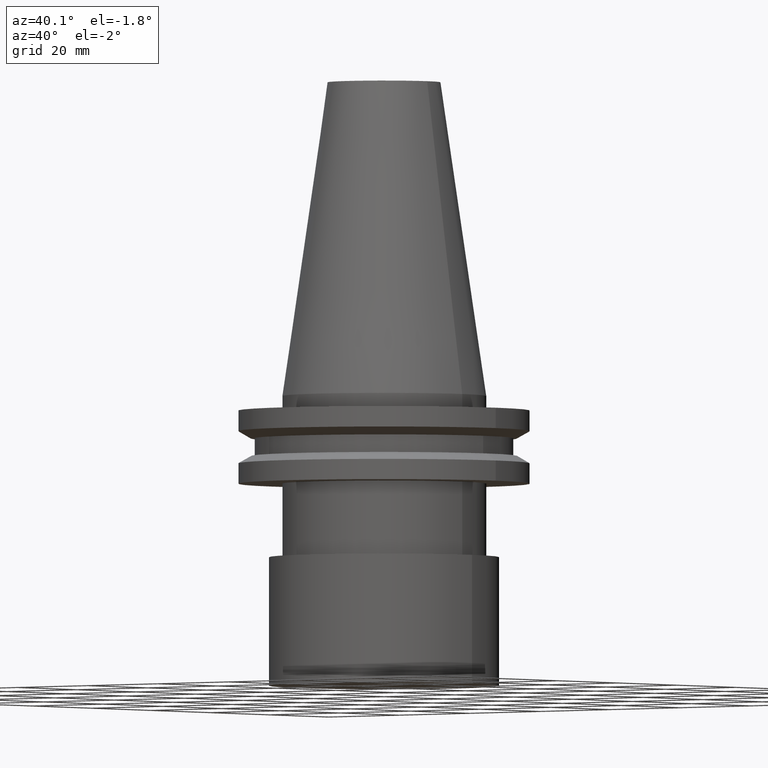
[diagram: clean part render]
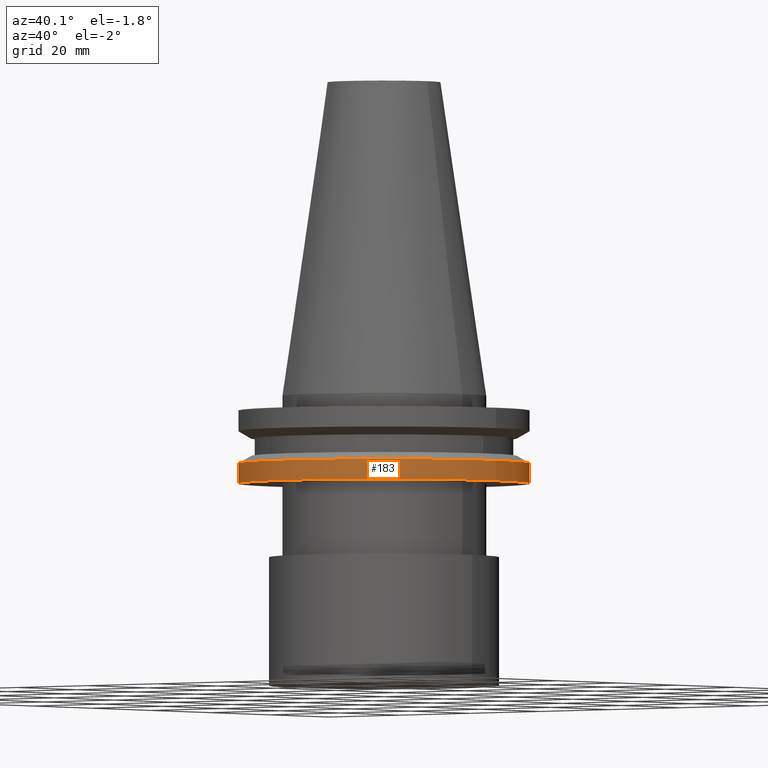
[diagram: same view with one face highlighted and labeled with its STEP entity id]
A machine part, auxiliary view. The second image highlights one B-rep face of the part: STEP entity #183.
In plain terms, the highlighted cylindrical surface (bore or boss wall) has radius 31.75 mm, axis along (-0, -0, 1).
Its self-contained STEP definition (entity closure, byte-faithful):
#17 = AXIS2_PLACEMENT_3D ( 'NONE', #366, #118, #220 ) ;
#49 = CARTESIAN_POINT ( 'NONE',  ( 0.000000000000000000, 0.000000000000000000, -19.04999999999999716 ) ) ;
#52 = DIRECTION ( 'NONE',  ( 1.000000000000000000, 0.000000000000000000, 0.000000000000000000 ) ) ;
#81 = CYLINDRICAL_SURFACE ( 'NONE', #98, 31.75000000000000000 ) ;
#98 = AXIS2_PLACEMENT_3D ( 'NONE', #202, #330, #52 ) ;
#100 = ORIENTED_EDGE ( 'NONE', *, *, #327, .F. ) ;
#101 = CARTESIAN_POINT ( 'NONE',  ( 31.75000000000000000, 0.000000000000000000, -14.65472339340266572 ) ) ;
#118 = DIRECTION ( 'NONE',  ( -0.000000000000000000, -0.000000000000000000, 1.000000000000000000 ) ) ;
#125 = CARTESIAN_POINT ( 'NONE',  ( 31.74999999999999289, 0.000000000000000000, -19.04999999999999716 ) ) ;
#170 = VERTEX_POINT ( 'NONE', #125 ) ;
#183 = ADVANCED_FACE ( 'NONE', ( #205, #296 ), #81, .T. ) ;
#202 = CARTESIAN_POINT ( 'NONE',  ( 0.000000000000000000, 0.000000000000000000, 68.25000000000000000 ) ) ;
#205 = FACE_OUTER_BOUND ( 'NONE', #283, .T. ) ;
#220 = DIRECTION ( 'NONE',  ( 1.000000000000000000, 0.000000000000000000, 0.000000000000000000 ) ) ;
#224 = EDGE_LOOP ( 'NONE', ( #383 ) ) ;
#239 = CIRCLE ( 'NONE', #285, 31.74999999999999289 ) ;
#249 = EDGE_CURVE ( 'NONE', #170, #170, #239, .T. ) ;
#283 = EDGE_LOOP ( 'NONE', ( #100 ) ) ;
#285 = AXIS2_PLACEMENT_3D ( 'NONE', #49, #392, #360 ) ;
#296 = FACE_OUTER_BOUND ( 'NONE', #224, .T. ) ;
#322 = VERTEX_POINT ( 'NONE', #101 ) ;
#324 = CIRCLE ( 'NONE', #17, 31.75000000000000000 ) ;
#327 = EDGE_CURVE ( 'NONE', #322, #322, #324, .T. ) ;
#330 = DIRECTION ( 'NONE',  ( -0.000000000000000000, -0.000000000000000000, 1.000000000000000000 ) ) ;
#360 = DIRECTION ( 'NONE',  ( 1.000000000000000000, 0.000000000000000000, 0.000000000000000000 ) ) ;
#366 = CARTESIAN_POINT ( 'NONE',  ( 0.000000000000000000, 0.000000000000000000, -14.65472339340266572 ) ) ;
#383 = ORIENTED_EDGE ( 'NONE', *, *, #249, .T. ) ;
#392 = DIRECTION ( 'NONE',  ( -0.000000000000000000, -0.000000000000000000, 1.000000000000000000 ) ) ;